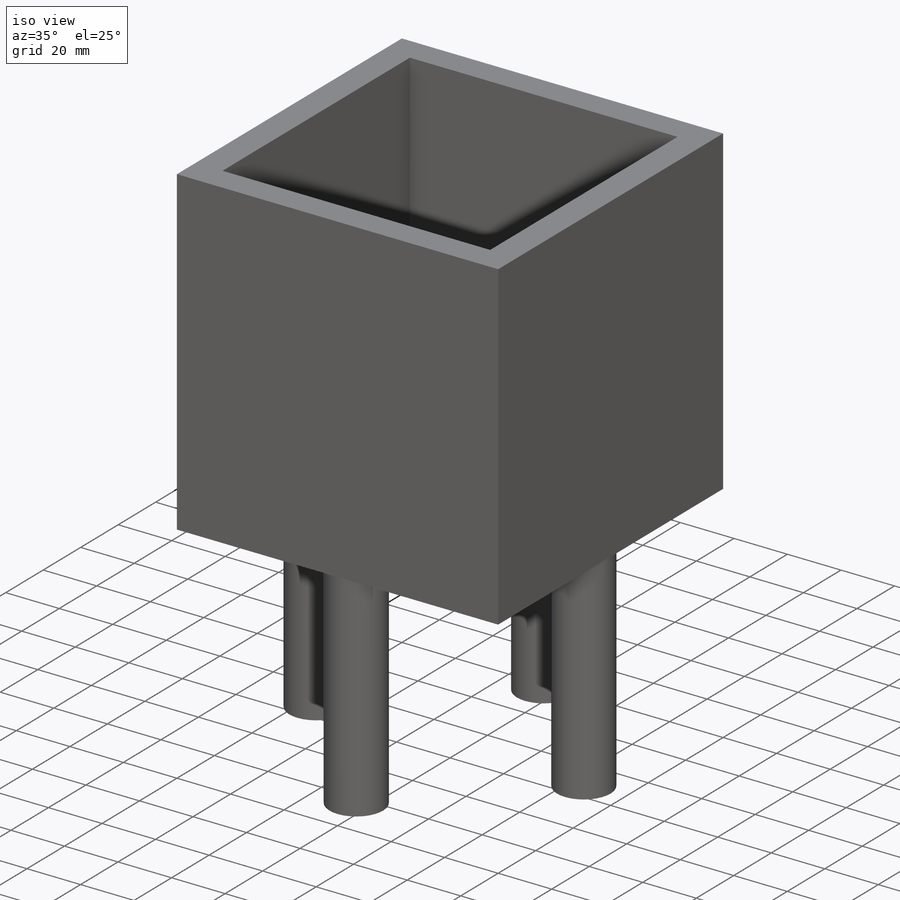
[diagram: iso view]
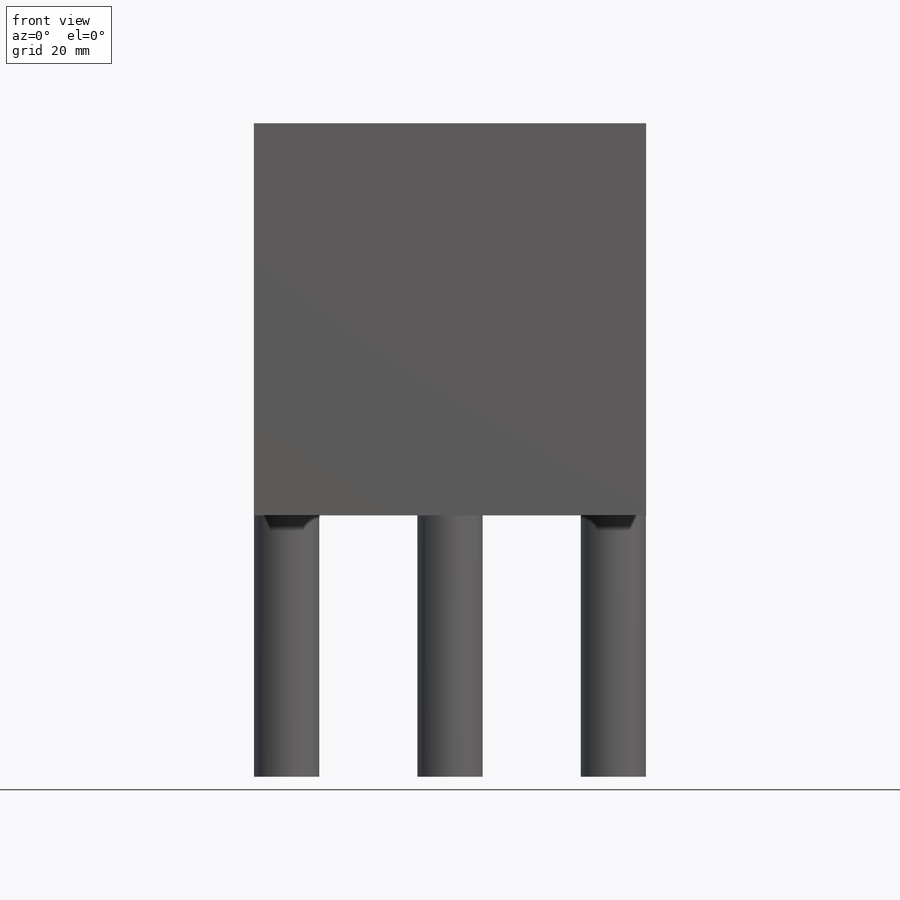
[diagram: front view]
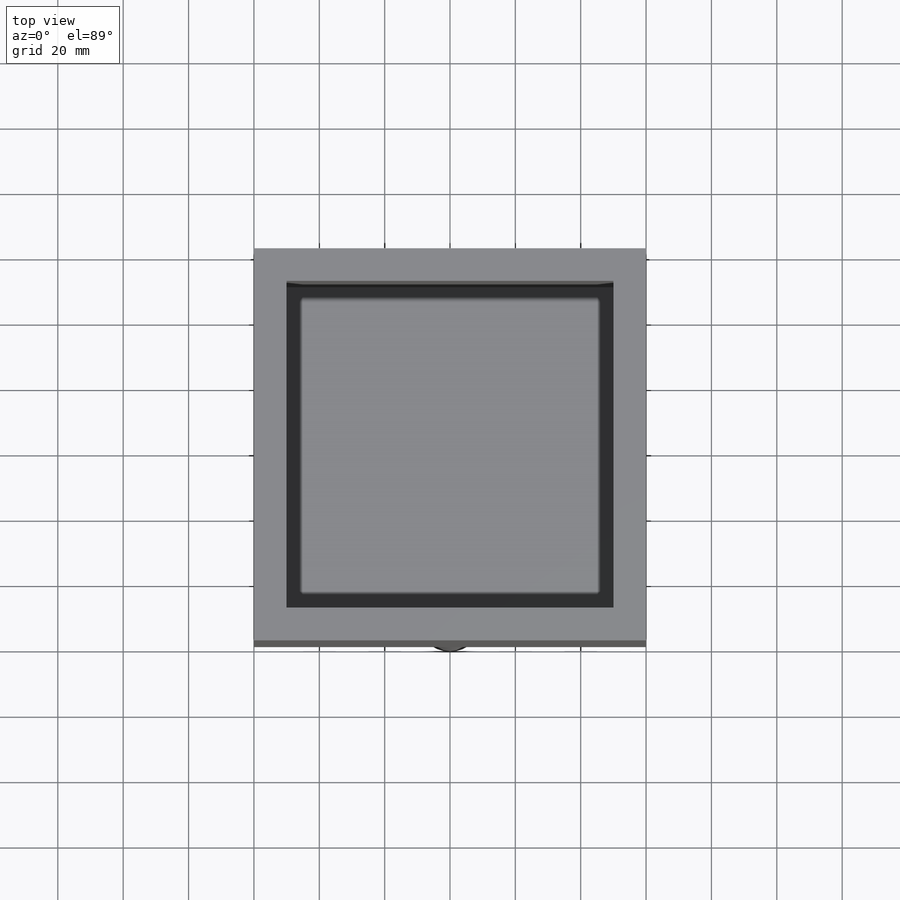
[diagram: top view]
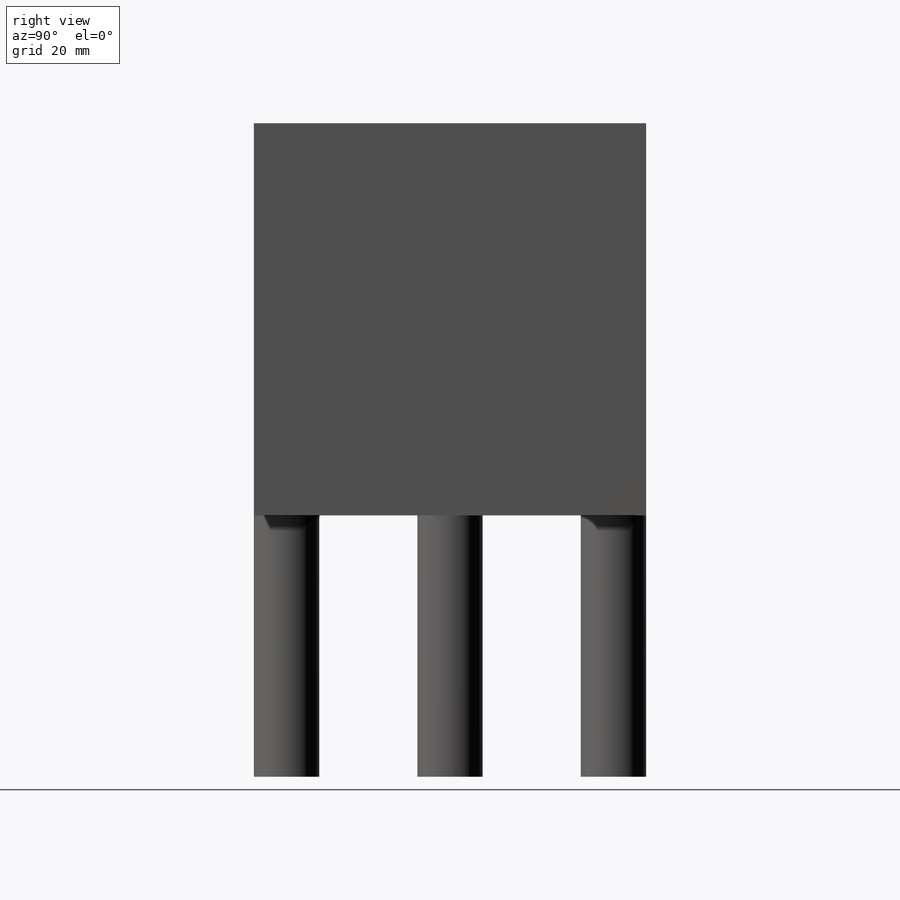
[diagram: right view]
SOLIDWORKS PART (.sldprt)
format: sldprt  version: not decoded by parser v0  size: 190,464 bytes
history: native  units: mm
features: sketch x6, extrude x4, cut_extrude x2, material x1, fillet x1 (+11 scaffold rows collapsed)
feature tree (25):
  scaffold x11  (default folders/planes/origin — collapsed)
  material  "Material <not specified>"
  sketch  "Sketch2"  dims[D1=120.0mm]
  extrude  "Boss-Extrude1"  Depth=120mm
  sketch  "Sketch3"
  extrude  "Boss-Extrude2"  Depth=10mm
  sketch  "Sketch4"  dims[D1=80.0mm]
  extrude  "Boss-Extrude3"  Depth=30mm
  sketch  "Sketch5"  dims[D1=~23.489171mm]
  cut_extrude  "Cut-Extrude2"  Depth=25mm
  fillet  "Fillet1"  Radius=25mm
  sketch  "Sketch7"  dims[D1=~10.023645mm]
  extrude  "Boss-Extrude5"  Depth=80mm
  sketch  "Sketch8"
  cut_extrude  "Cut-Extrude4"  Depth=30mm
decode coverage: 11 of 13 modeling features carry decoded parameters
note: ~ marks probable driven/reference dimensions
note: suppression state not decoded; provenance and decode notes live in map.json
